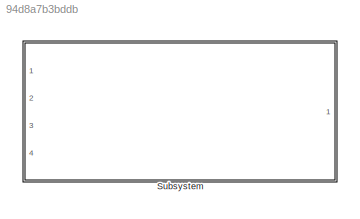
MODEL slx_94d8a7b3bddb
KIND library
CONFIG AbsTol = auto
CONFIG EnableMultiTasking = off
CONFIG FixedStep = auto
CONFIG MaxStep = auto
CONFIG MinStep = auto
CONFIG RelTol = 1e-3
CONFIG SampleTimeConstraint = Unconstrained
CONFIG Solver = VariableStepAuto
CONFIG SolverName = VariableStepAuto
CONFIG StartTime = 0.0
CONFIG StopTime = 10.0
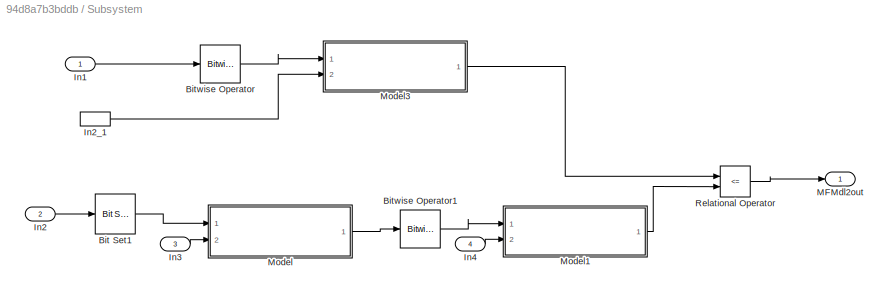
BLOCK [SubSystem] Subsystem
  Ports = [4, 1]
  RequestExecContextInheritance = off
  Variant = off
BLOCK [Reference] Subsystem/Bit Set1  REF=simulink/Logic and Bit
Operations/Bit Set
  Ports = [1, 1]
  SourceBlock = simulink/Logic and Bit\nOperations/Bit Set
  SourceType = Bit Set
BLOCK [Reference] Subsystem/Bitwise Operator  REF=simulink/Logic and Bit
Operations/Bitwise
Operator
  Ports = [1, 1]
  SourceBlock = simulink/Logic and Bit\nOperations/Bitwise\nOperator
  SourceType = Bitwise Operator
BLOCK [Reference] Subsystem/Bitwise Operator1  REF=simulink/Logic and Bit
Operations/Bitwise
Operator
  Ports = [1, 1]
  SourceBlock = simulink/Logic and Bit\nOperations/Bitwise\nOperator
  SourceType = Bitwise Operator
BLOCK [Inport] Subsystem/In1
  IconDisplay = Port number
BLOCK [Inport] Subsystem/In2
  IconDisplay = Port number
  Port = 2
BLOCK [InportShadow] Subsystem/In2_1
  IconDisplay = Port number
  Port = 2
BLOCK [Inport] Subsystem/In3
  IconDisplay = Port number
  Port = 3
BLOCK [Inport] Subsystem/In4
  IconDisplay = Port number
  Port = 4
BLOCK [Outport] Subsystem/MFMdl2out
  IconDisplay = Port number
BLOCK [ModelReference] Subsystem/Model
  ModelNameDialog = Function11.slx
  ModelReferenceVersion = 1.20
  Ports = [2, 1]
  Variant = off
BLOCK [ModelReference] Subsystem/Model1
  ModelNameDialog = Function12.slx
  ModelReferenceVersion = 1.18
  Ports = [2, 1]
  Variant = off
BLOCK [ModelReference] Subsystem/Model3
  ModelNameDialog = Function12.slx
  ModelReferenceVersion = 1.18
  Ports = [2, 1]
  Variant = off
BLOCK [RelationalOperator] Subsystem/Relational Operator
  InputSameDT = off
  Operator = <=
  OutDataTypeStr = boolean
  Ports = [2, 1]
  RndMeth = Simplest
LINE Subsystem/Bit Set1:1 -> Subsystem/Model:1
LINE Subsystem/Bitwise Operator1:1 -> Subsystem/Model1:1
LINE Subsystem/Bitwise Operator:1 -> Subsystem/Model3:1
LINE Subsystem/In1:1 -> Subsystem/Bitwise Operator:1
LINE Subsystem/In2:1 -> Subsystem/Bit Set1:1
LINE Subsystem/In2_1:1 -> Subsystem/Model3:2
LINE Subsystem/In3:1 -> Subsystem/Model:2
LINE Subsystem/In4:1 -> Subsystem/Model1:2
LINE Subsystem/Model1:1 -> Subsystem/Relational Operator:2
LINE Subsystem/Model3:1 -> Subsystem/Relational Operator:1
LINE Subsystem/Model:1 -> Subsystem/Bitwise Operator1:1
LINE Subsystem/Relational Operator:1 -> Subsystem/MFMdl2out:1
